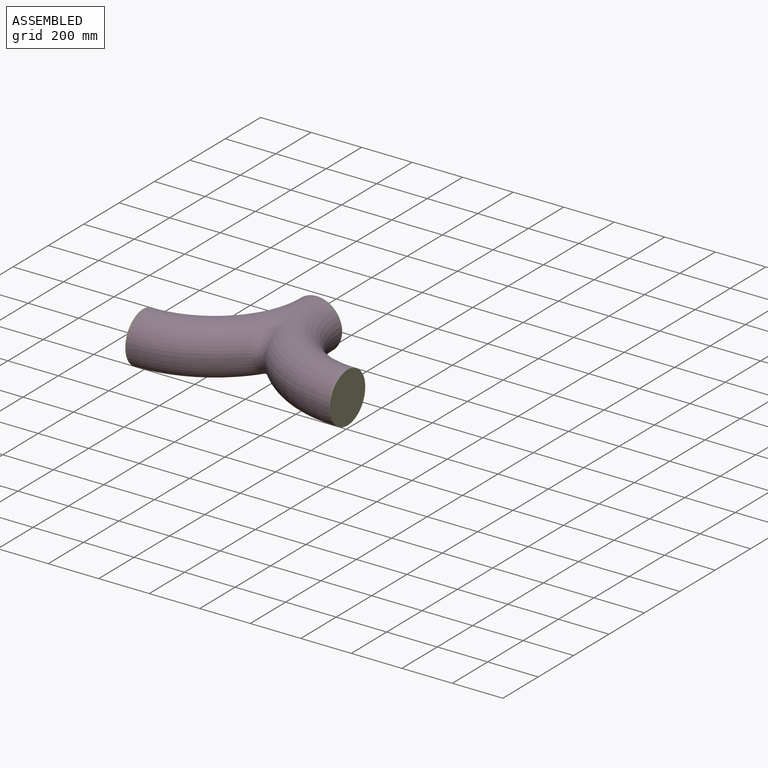
[diagram: assembled view]
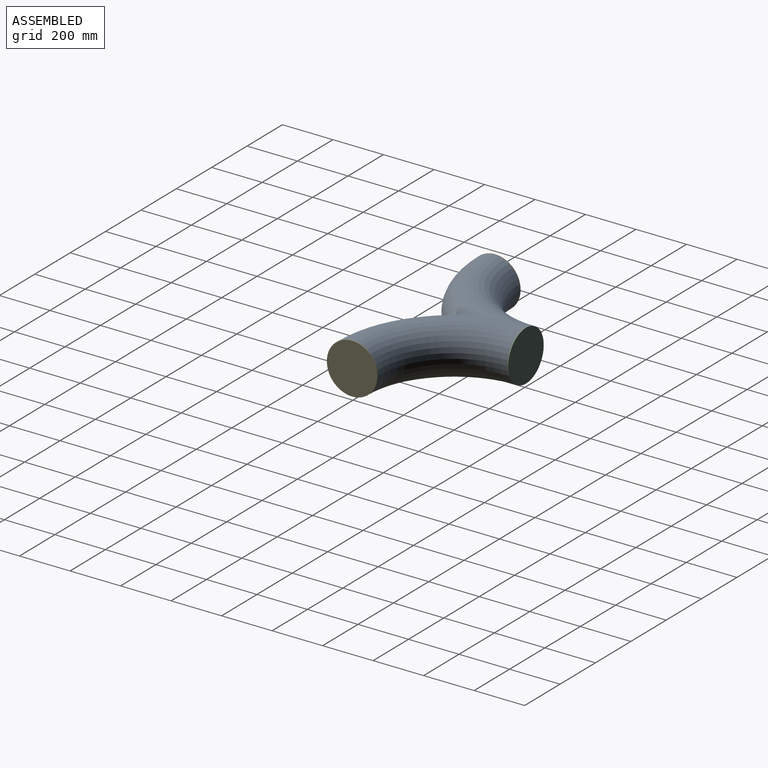
[diagram: assembled view, second angle]
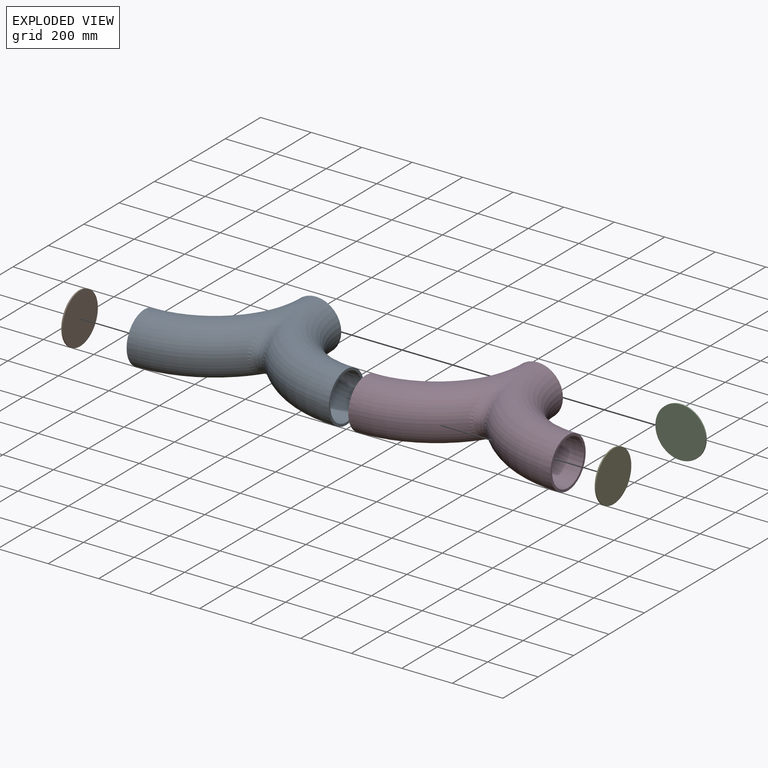
[diagram: exploded view]
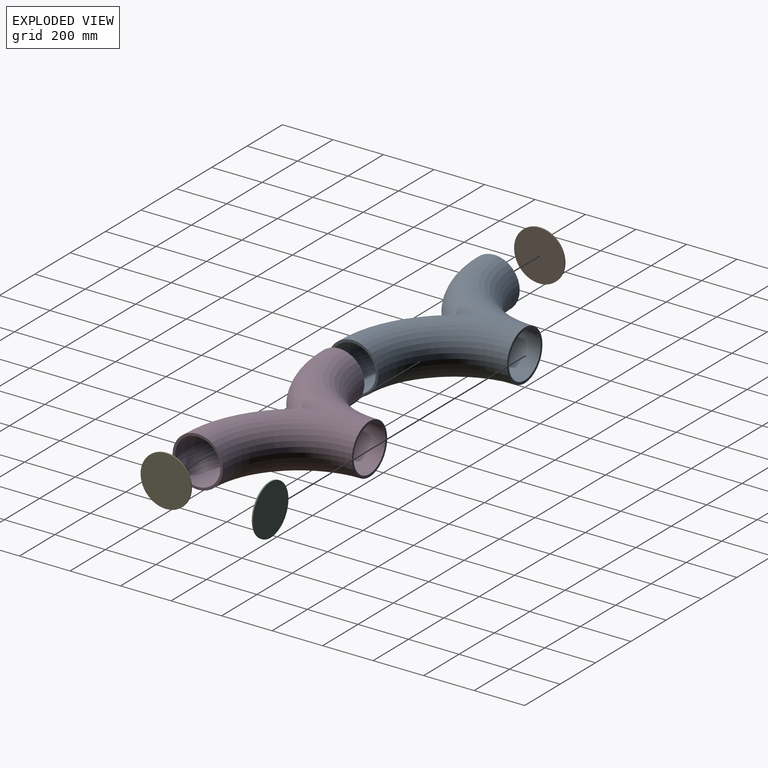
[diagram: exploded view, second angle]
ASSEMBLY  parts=5 mates=2
PART A: 9 faces, bbox 800x541.2x200 mm
  f0: plane 200x200mm, normal (0,1,0), area 5969mm2, adj f2,f4,f5,f6
  f1: plane 200x200mm, normal (-1,0,0), area 5969mm2, adj f2,f5
  f2: torus R=400mm, axis (0,0,-1), area -394784.2mm2, adj f0,f1,f7
  f3: plane 200x200mm, normal (1,0,0), area 5969mm2, adj f4,f6
  f4: torus R=400mm, axis (0,0,-1), area 306188.4mm2, adj f0,f3,f7
  f5: torus R=400mm, axis (0,0,-1), area 278986.5mm2, adj f0,f1,f8
  f6: torus R=400mm, axis (0,0,-1), area 279015.2mm2, adj f0,f3,f8
  f7: bspline ~343.21x200mm, area 30579.6mm2, adj f2,f4
  f8: bspline ~329.21x180mm, area 23153.1mm2, adj f5,f6
PART B: 3 faces, bbox 200x5x200 mm
  f0: cylinder r=100mm len=200mm, axis (0,1,0), area 3141.6mm2, adj f1,f2
  f1: plane 200x200mm, normal (0,-1,0), area 31415.9mm2, adj f0
  f2: plane 200x200mm, normal (0,1,0), area 31415.9mm2, adj f0
PART C: same geometry as B
PART D: same geometry as A
PART E: same geometry as B
PLACE A at identity
PLACE B rot(axis=(0,0,1),90deg) t=(-405,-400,0)mm
PLACE C t=(0,5,0)mm
PLACE D at identity
PLACE E rot(axis=(0,0,1),90deg) t=(400,-400,0)mm
MATE fastened B.f0 <-> A.f1  axis (1,0,0) through (-400,-400,0)mm
MATE fastened E.f0 <-> A.f3  axis (-1,0,0) through (400,-400,0)mm
